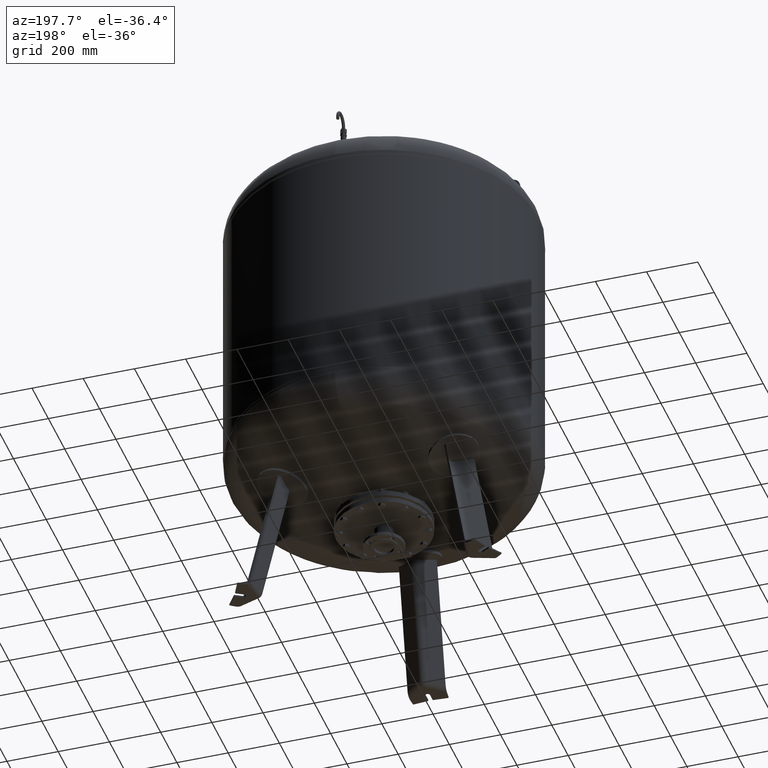
[diagram: clean part render]
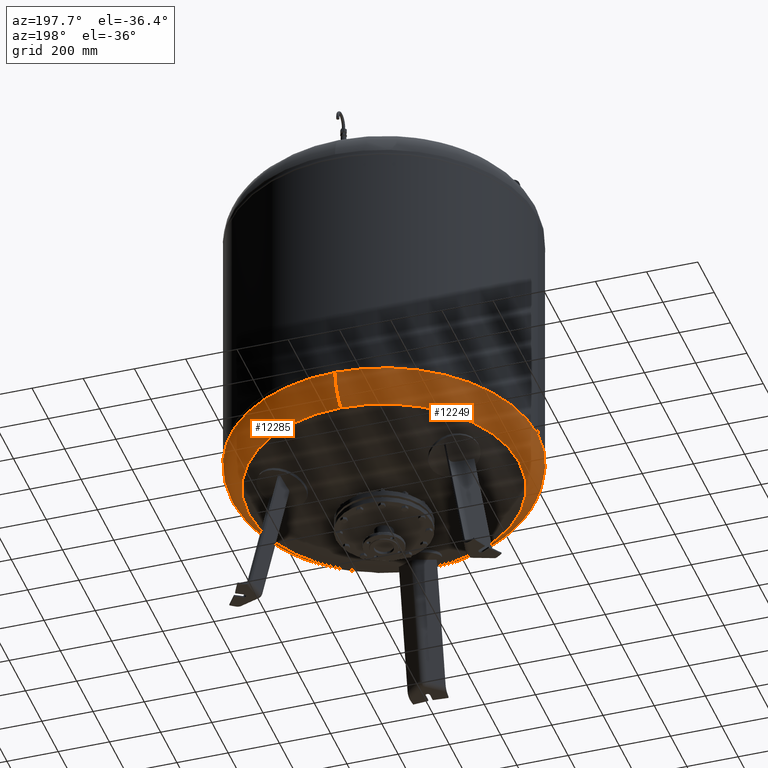
[diagram: same view with one multi-face feature highlighted, each face labeled with its STEP entity id]
A machine part, auxiliary view. The highlighted faces form ONE feature: a constant-radius fillet chain: 2 tangent blend faces with common blend radius 127 mm. The faces share edges in the B-rep.
Their STEP definitions:
[1] entity #12249 (Torus):
#12154=CARTESIAN_POINT('',(-600.0,-4.336858E-014,696.087542566272190));
#12155=VERTEX_POINT('',#12154);
#12179=CARTESIAN_POINT('',(-1.445307E-013,600.0,696.087542566272420));
#12180=VERTEX_POINT('',#12179);
#12188=CARTESIAN_POINT('',(-3.551733E-014,-4.336858E-014,696.087542566272300));
#12189=DIRECTION('',(0.0,0.0,1.0));
#12190=DIRECTION('',(-1.0,0.0,0.0));
#12191=AXIS2_PLACEMENT_3D('',#12188,#12189,#12190);
#12192=CIRCLE('',#12191,600.0);
#12193=EDGE_CURVE('',#12180,#12155,#12192,.T.);
#12198=CARTESIAN_POINT('',(-7.105427E-014,-4.336858E-014,696.087542566272300));
#12199=DIRECTION('',(-1.504413E-016,-1.836970E-016,1.0));
#12200=DIRECTION('',(0.0,-1.0,0.0));
#12201=AXIS2_PLACEMENT_3D('',#12198,#12199,#12200);
#12202=TOROIDAL_SURFACE('',#12201,472.999999999999890,127.000000000000010);
#12203=CARTESIAN_POINT('',(-7.105427E-014,-600.0,696.087542566272190));
#12204=VERTEX_POINT('',#12203);
#12205=CARTESIAN_POINT('',(-5.387807E-014,-528.621296296296240,581.915429516194880));
#12206=VERTEX_POINT('',#12205);
#12207=CARTESIAN_POINT('',(-7.105427E-014,-472.999999999999940,696.087542566272190));
#12208=DIRECTION('',(1.0,0.0,0.0));
#12209=DIRECTION('',(0.0,-1.0,0.0));
#12210=AXIS2_PLACEMENT_3D('',#12207,#12208,#12209);
#12211=CIRCLE('',#12210,127.000000000000010);
#12212=EDGE_CURVE('',#12204,#12206,#12211,.T.);
#12213=ORIENTED_EDGE('',*,*,#12212,.F.);
#12214=CARTESIAN_POINT('',(-3.551733E-014,-4.336858E-014,696.087542566272300));
#12215=DIRECTION('',(0.0,0.0,1.0));
#12216=DIRECTION('',(-1.0,0.0,0.0));
#12217=AXIS2_PLACEMENT_3D('',#12214,#12215,#12216);
#12218=CIRCLE('',#12217,600.0);
#12219=EDGE_CURVE('',#12155,#12204,#12218,.T.);
#12220=ORIENTED_EDGE('',*,*,#12219,.F.);
#12221=ORIENTED_EDGE('',*,*,#12193,.F.);
#12222=CARTESIAN_POINT('',(-1.186134E-013,528.621296296296240,581.915429516195100));
#12223=VERTEX_POINT('',#12222);
#12224=CARTESIAN_POINT('',(-1.289782E-013,472.999999999999830,696.087542566272420));
#12225=DIRECTION('',(-1.0,0.0,0.0));
#12226=DIRECTION('',(0.0,1.0,0.0));
#12227=AXIS2_PLACEMENT_3D('',#12224,#12225,#12226);
#12228=CIRCLE('',#12227,127.000000000000010);
#12229=EDGE_CURVE('',#12180,#12223,#12228,.T.);
#12230=ORIENTED_EDGE('',*,*,#12229,.T.);
#12231=CARTESIAN_POINT('',(-528.621296296296240,-2.239550E-014,581.915429516194990));
#12232=VERTEX_POINT('',#12231);
#12233=CARTESIAN_POINT('',(-1.834112E-014,-2.239550E-014,581.915429516194990));
#12234=DIRECTION('',(0.0,0.0,1.0));
#12235=DIRECTION('',(-1.0,0.0,0.0));
#12236=AXIS2_PLACEMENT_3D('',#12233,#12234,#12235);
#12237=CIRCLE('',#12236,528.621296296296240);
#12238=EDGE_CURVE('',#12223,#12232,#12237,.T.);
#12239=ORIENTED_EDGE('',*,*,#12238,.T.);
#12240=CARTESIAN_POINT('',(-1.834112E-014,-2.239550E-014,581.915429516194990));
#12241=DIRECTION('',(0.0,0.0,1.0));
#12242=DIRECTION('',(-1.0,0.0,0.0));
#12243=AXIS2_PLACEMENT_3D('',#12240,#12241,#12242);
#12244=CIRCLE('',#12243,528.621296296296240);
#12245=EDGE_CURVE('',#12232,#12206,#12244,.T.);
#12246=ORIENTED_EDGE('',*,*,#12245,.T.);
#12247=EDGE_LOOP('',(#12213,#12220,#12221,#12230,#12239,#12246));
#12248=FACE_OUTER_BOUND('',#12247,.T.);
#12249=ADVANCED_FACE('',(#12248),#12202,.T.);
[2] entity #12285 (Torus):
#12171=CARTESIAN_POINT('',(599.999999999999890,3.010780E-014,696.087542566272300));
#12172=VERTEX_POINT('',#12171);
#12179=CARTESIAN_POINT('',(-1.445307E-013,600.0,696.087542566272420));
#12180=VERTEX_POINT('',#12179);
#12181=CARTESIAN_POINT('',(-3.551733E-014,-4.336858E-014,696.087542566272300));
#12182=DIRECTION('',(0.0,0.0,1.0));
#12183=DIRECTION('',(-1.0,0.0,0.0));
#12184=AXIS2_PLACEMENT_3D('',#12181,#12182,#12183);
#12185=CIRCLE('',#12184,600.0);
#12186=EDGE_CURVE('',#12172,#12180,#12185,.T.);
#12203=CARTESIAN_POINT('',(-7.105427E-014,-600.0,696.087542566272190));
#12204=VERTEX_POINT('',#12203);
#12205=CARTESIAN_POINT('',(-5.387807E-014,-528.621296296296240,581.915429516194880));
#12206=VERTEX_POINT('',#12205);
#12207=CARTESIAN_POINT('',(-7.105427E-014,-472.999999999999940,696.087542566272190));
#12208=DIRECTION('',(1.0,0.0,0.0));
#12209=DIRECTION('',(0.0,-1.0,0.0));
#12210=AXIS2_PLACEMENT_3D('',#12207,#12208,#12209);
#12211=CIRCLE('',#12210,127.000000000000010);
#12212=EDGE_CURVE('',#12204,#12206,#12211,.T.);
#12222=CARTESIAN_POINT('',(-1.186134E-013,528.621296296296240,581.915429516195100));
#12223=VERTEX_POINT('',#12222);
#12224=CARTESIAN_POINT('',(-1.289782E-013,472.999999999999830,696.087542566272420));
#12225=DIRECTION('',(-1.0,0.0,0.0));
#12226=DIRECTION('',(0.0,1.0,0.0));
#12227=AXIS2_PLACEMENT_3D('',#12224,#12225,#12226);
#12228=CIRCLE('',#12227,127.000000000000010);
#12229=EDGE_CURVE('',#12180,#12223,#12228,.T.);
#12257=CARTESIAN_POINT('',(-1.834112E-014,-2.239550E-014,581.915429516194990));
#12258=DIRECTION('',(0.0,0.0,1.0));
#12259=DIRECTION('',(-1.0,0.0,0.0));
#12260=AXIS2_PLACEMENT_3D('',#12257,#12258,#12259);
#12261=CIRCLE('',#12260,528.621296296296240);
#12262=EDGE_CURVE('',#12206,#12223,#12261,.T.);
#12267=CARTESIAN_POINT('',(-7.105427E-014,-4.336858E-014,696.087542566272300));
#12268=DIRECTION('',(-1.504413E-016,-1.836970E-016,1.0));
#12269=DIRECTION('',(0.0,-1.0,0.0));
#12270=AXIS2_PLACEMENT_3D('',#12267,#12268,#12269);
#12271=TOROIDAL_SURFACE('',#12270,472.999999999999890,127.000000000000010);
#12272=ORIENTED_EDGE('',*,*,#12212,.T.);
#12273=ORIENTED_EDGE('',*,*,#12262,.T.);
#12274=ORIENTED_EDGE('',*,*,#12229,.F.);
#12275=ORIENTED_EDGE('',*,*,#12186,.F.);
#12276=CARTESIAN_POINT('',(-3.551733E-014,-4.336858E-014,696.087542566272300));
#12277=DIRECTION('',(0.0,0.0,1.0));
#12278=DIRECTION('',(-1.0,0.0,0.0));
#12279=AXIS2_PLACEMENT_3D('',#12276,#12277,#12278);
#12280=CIRCLE('',#12279,600.0);
#12281=EDGE_CURVE('',#12204,#12172,#12280,.T.);
#12282=ORIENTED_EDGE('',*,*,#12281,.F.);
#12283=EDGE_LOOP('',(#12272,#12273,#12274,#12275,#12282));
#12284=FACE_OUTER_BOUND('',#12283,.T.);
#12285=ADVANCED_FACE('',(#12284),#12271,.T.);